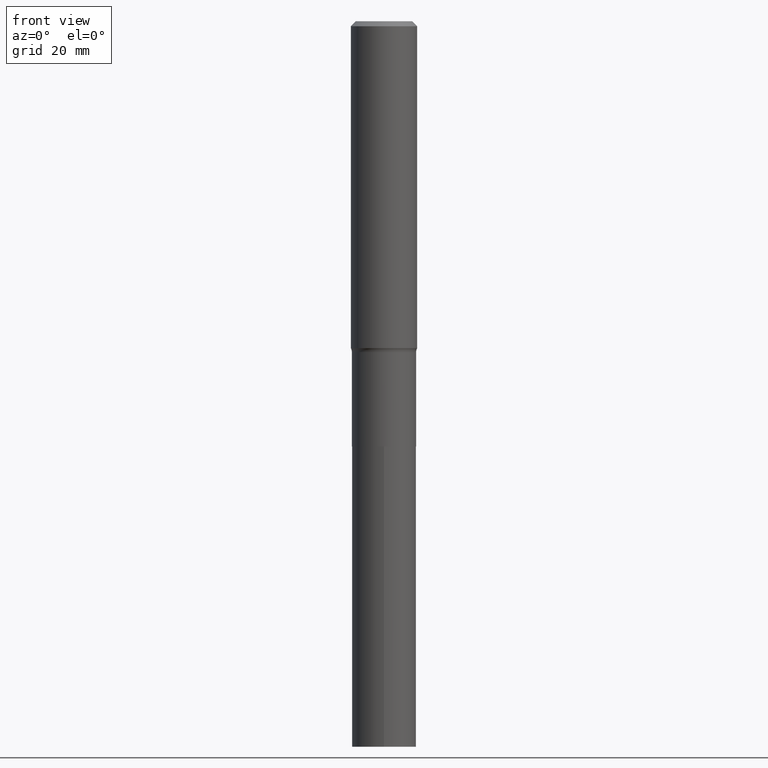
[diagram: clean part render]
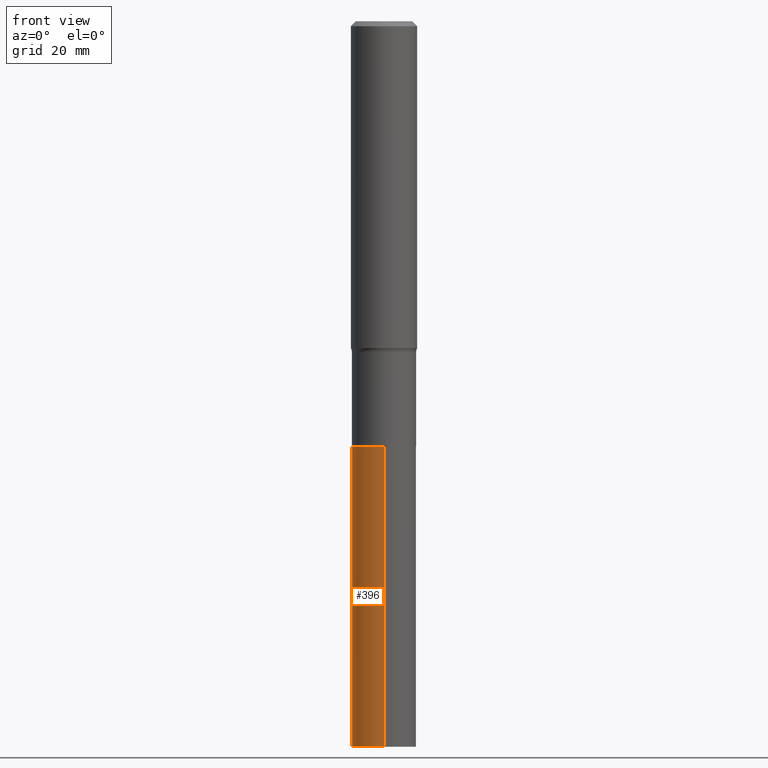
[diagram: same view with one face highlighted and labeled with its STEP entity id]
A machine part, front view. The second image highlights one B-rep face of the part: STEP entity #396.
In plain terms, the highlighted cylindrical surface (edge-blend (fillet) strip) has radius 7.7495 mm, axis along (-0, 0, 1).
Its self-contained STEP definition (entity closure, byte-faithful):
#3 = AXIS2_PLACEMENT_3D ( 'NONE', #283, #152, #318 ) ;
#4 = ORIENTED_EDGE ( 'NONE', *, *, #348, .F. ) ;
#22 = EDGE_CURVE ( 'NONE', #449, #367, #351, .T. ) ;
#24 = CARTESIAN_POINT ( 'NONE',  ( -2.130501912961980867E-15, -0.3051000000000140822, -4.037799999999998946 ) ) ;
#29 = DIRECTION ( 'NONE',  ( -2.445318536696441627E-29, 3.491696533303765399E-15, 1.000000000000000000 ) ) ;
#58 = AXIS2_PLACEMENT_3D ( 'NONE', #141, #459, #435 ) ;
#66 = LINE ( 'NONE', #431, #457 ) ;
#79 = CARTESIAN_POINT ( 'NONE',  ( 9.874313945614344915E-29, -1.409790334998085431E-14, -4.037800000000000722 ) ) ;
#102 = EDGE_LOOP ( 'NONE', ( #4, #117, #425, #258 ) ) ;
#109 = CIRCLE ( 'NONE', #58, 0.3050999999999999823 ) ;
#117 = ORIENTED_EDGE ( 'NONE', *, *, #414, .T. ) ;
#141 = CARTESIAN_POINT ( 'NONE',  ( 9.874313945614344915E-29, -1.409790334998085431E-14, -4.037800000000000722 ) ) ;
#144 = FACE_OUTER_BOUND ( 'NONE', #102, .T. ) ;
#152 = DIRECTION ( 'NONE',  ( -2.445318536696441347E-29, 3.491696533303765004E-15, 1.000000000000000000 ) ) ;
#153 = VERTEX_POINT ( 'NONE', #395 ) ;
#169 = DIRECTION ( 'NONE',  ( -2.445318536696441627E-29, 3.491696533303765399E-15, 1.000000000000000000 ) ) ;
#180 = CYLINDRICAL_SURFACE ( 'NONE', #353, 0.3050999999999999823 ) ;
#202 = DIRECTION ( 'NONE',  ( -6.982962677686265133E-15, -1.000000000000000000, 3.581577179500837048E-15 ) ) ;
#236 = CARTESIAN_POINT ( 'NONE',  ( -2.130501912961911053E-15, -0.3051000000000240187, -6.889800000000000146 ) ) ;
#258 = ORIENTED_EDGE ( 'NONE', *, *, #455, .F. ) ;
#269 = CARTESIAN_POINT ( 'NONE',  ( 2.167865886804233963E-15, 0.3050999999999858825, -4.037800000000001610 ) ) ;
#283 = CARTESIAN_POINT ( 'NONE',  ( 1.684836241227259947E-28, -2.405622186296319734E-14, -6.889800000000001035 ) ) ;
#302 = VERTEX_POINT ( 'NONE', #269 ) ;
#312 = CIRCLE ( 'NONE', #3, 0.3050999999999999823 ) ;
#318 = DIRECTION ( 'NONE',  ( -6.982962677686265133E-15, -1.000000000000000000, 3.581577179500837048E-15 ) ) ;
#335 = VECTOR ( 'NONE', #169, 39.37007874015748143 ) ;
#348 = EDGE_CURVE ( 'NONE', #153, #302, #66, .T. ) ;
#351 = LINE ( 'NONE', #24, #335 ) ;
#353 = AXIS2_PLACEMENT_3D ( 'NONE', #79, #371, #202 ) ;
#367 = VERTEX_POINT ( 'NONE', #441 ) ;
#371 = DIRECTION ( 'NONE',  ( -2.445318536696441347E-29, 3.491696533303765004E-15, 1.000000000000000000 ) ) ;
#395 = CARTESIAN_POINT ( 'NONE',  ( 2.167865886804198859E-15, 0.3050999999999759460, -6.889800000000002811 ) ) ;
#396 = ADVANCED_FACE ( 'NONE', ( #144 ), #180, .T. ) ;
#414 = EDGE_CURVE ( 'NONE', #153, #449, #312, .T. ) ;
#425 = ORIENTED_EDGE ( 'NONE', *, *, #22, .T. ) ;
#431 = CARTESIAN_POINT ( 'NONE',  ( 2.167865886804164149E-15, 0.3050999999999858825, -4.037800000000001610 ) ) ;
#435 = DIRECTION ( 'NONE',  ( -6.982962677686265133E-15, -1.000000000000000000, 3.581577179500837048E-15 ) ) ;
#441 = CARTESIAN_POINT ( 'NONE',  ( -2.130501912961980867E-15, -0.3051000000000140822, -4.037799999999998946 ) ) ;
#449 = VERTEX_POINT ( 'NONE', #236 ) ;
#455 = EDGE_CURVE ( 'NONE', #302, #367, #109, .T. ) ;
#457 = VECTOR ( 'NONE', #29, 39.37007874015748143 ) ;
#459 = DIRECTION ( 'NONE',  ( -2.445318536696441347E-29, 3.491696533303765004E-15, 1.000000000000000000 ) ) ;